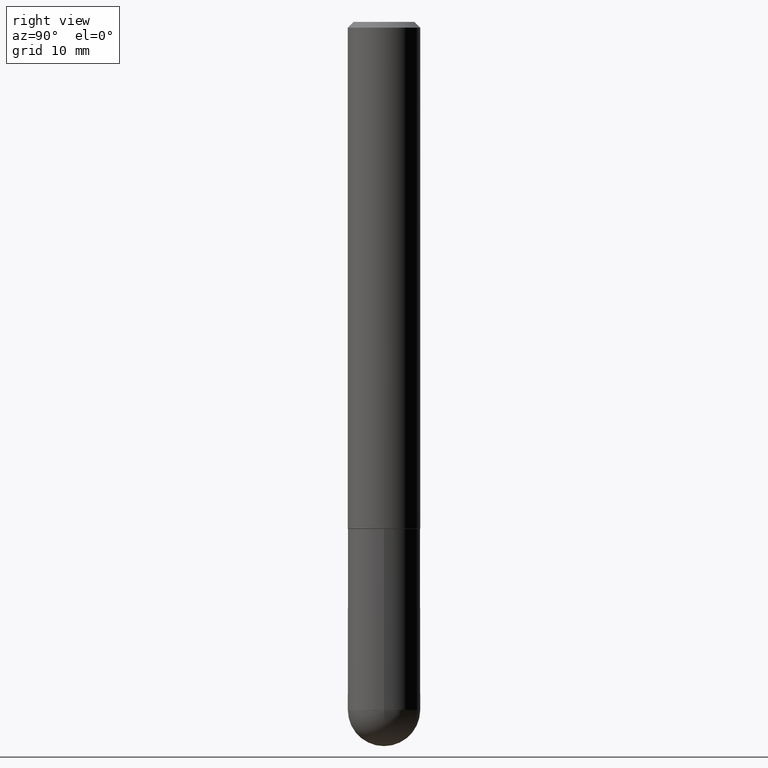
[diagram: clean part render]
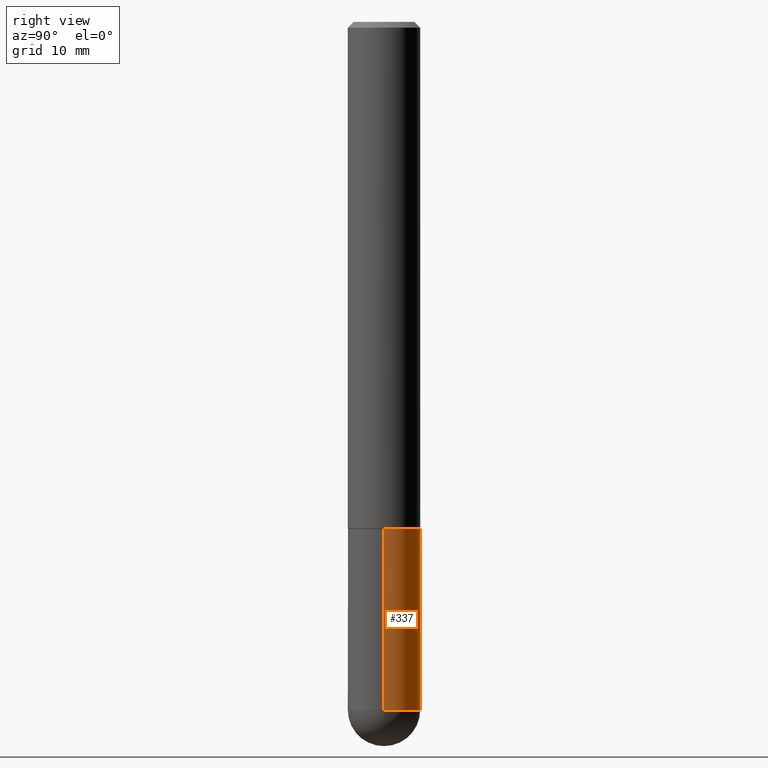
[diagram: same view with one face highlighted and labeled with its STEP entity id]
A machine part, right view. The second image highlights one B-rep face of the part: STEP entity #337.
In plain terms, the highlighted cylindrical surface (edge-blend (fillet) strip) has radius 3.175 mm, axis along (-0, 0, 1).
Its self-contained STEP definition (entity closure, byte-faithful):
#7 = EDGE_CURVE ( 'NONE', #91, #100, #302, .T. ) ;
#18 = EDGE_CURVE ( 'NONE', #252, #134, #112, .T. ) ;
#31 = DIRECTION ( 'NONE',  ( -2.445468806185136597E-29, 3.491481338843145583E-15, 1.000000000000000000 ) ) ;
#35 = CARTESIAN_POINT ( 'NONE',  ( -0.1250000000000000000, -6.313001841663864134E-15, -2.375000000000000000 ) ) ;
#61 = AXIS2_PLACEMENT_3D ( 'NONE', #148, #334, #271 ) ;
#66 = CARTESIAN_POINT ( 'NONE',  ( 0.1250000000000000000, -6.982962677686288010E-15, -1.750000000000000222 ) ) ;
#78 = DIRECTION ( 'NONE',  ( -2.445468806185136597E-29, 3.491481338843145583E-15, 1.000000000000000000 ) ) ;
#86 = VERTEX_POINT ( 'NONE', #270 ) ;
#87 = EDGE_CURVE ( 'NONE', #91, #252, #276, .T. ) ;
#89 = AXIS2_PLACEMENT_3D ( 'NONE', #223, #195, #312 ) ;
#91 = VERTEX_POINT ( 'NONE', #343 ) ;
#93 = CYLINDRICAL_SURFACE ( 'NONE', #89, 0.1250000000000000000 ) ;
#100 = VERTEX_POINT ( 'NONE', #66 ) ;
#105 = CARTESIAN_POINT ( 'NONE',  ( 5.807988414689700538E-29, -8.292268179752471696E-15, -2.375000000000000000 ) ) ;
#107 = DIRECTION ( 'NONE',  ( 1.000000000000000000, -6.982962677686270655E-15, 0.000000000000000000 ) ) ;
#110 = CIRCLE ( 'NONE', #381, 0.1250000000000000000 ) ;
#111 = CARTESIAN_POINT ( 'NONE',  ( 0.1250000000000000000, -8.728703347107833388E-16, 6.095220969744919741E-30 ) ) ;
#112 = CIRCLE ( 'NONE', #61, 0.1250000000000000000 ) ;
#121 = LINE ( 'NONE', #250, #247 ) ;
#124 = ORIENTED_EDGE ( 'NONE', *, *, #314, .T. ) ;
#134 = VERTEX_POINT ( 'NONE', #35 ) ;
#139 = CARTESIAN_POINT ( 'NONE',  ( 8.728703347108403340E-16, 0.1249999999999915623, -2.375000000000000888 ) ) ;
#148 = CARTESIAN_POINT ( 'NONE',  ( 5.807988414689700538E-29, -8.292268179752471696E-15, -2.375000000000000000 ) ) ;
#158 = ORIENTED_EDGE ( 'NONE', *, *, #331, .F. ) ;
#195 = DIRECTION ( 'NONE',  ( -2.445468806185136597E-29, 3.491481338843145583E-15, 1.000000000000000000 ) ) ;
#223 = CARTESIAN_POINT ( 'NONE',  ( 0.000000000000000000, 0.000000000000000000, 0.000000000000000000 ) ) ;
#242 = DIRECTION ( 'NONE',  ( -2.445468806185136877E-29, 3.491481338843145188E-15, 1.000000000000000000 ) ) ;
#247 = VECTOR ( 'NONE', #379, 39.37007874015748143 ) ;
#250 = CARTESIAN_POINT ( 'NONE',  ( -0.1250000000000000000, 8.881784197001252323E-16, -6.148668862818632227E-30 ) ) ;
#252 = VERTEX_POINT ( 'NONE', #139 ) ;
#259 = ORIENTED_EDGE ( 'NONE', *, *, #87, .T. ) ;
#270 = CARTESIAN_POINT ( 'NONE',  ( -0.1250000000000000000, -6.313001841663863345E-15, -1.750000000000000222 ) ) ;
#271 = DIRECTION ( 'NONE',  ( 1.000000000000000000, -6.982962677686270655E-15, 0.000000000000000000 ) ) ;
#276 = CIRCLE ( 'NONE', #403, 0.1250000000000000000 ) ;
#286 = DIRECTION ( 'NONE',  ( 1.000000000000000000, -6.982962677686262766E-15, 0.000000000000000000 ) ) ;
#302 = LINE ( 'NONE', #111, #370 ) ;
#307 = ORIENTED_EDGE ( 'NONE', *, *, #7, .F. ) ;
#312 = DIRECTION ( 'NONE',  ( 1.000000000000000000, -6.982962677686266711E-15, 4.876176775795935793E-29 ) ) ;
#313 = CARTESIAN_POINT ( 'NONE',  ( 4.279570410823989044E-29, -6.110092342975505460E-15, -1.750000000000000222 ) ) ;
#314 = EDGE_CURVE ( 'NONE', #134, #86, #121, .T. ) ;
#331 = EDGE_CURVE ( 'NONE', #100, #86, #110, .T. ) ;
#334 = DIRECTION ( 'NONE',  ( -2.445468806185136597E-29, 3.491481338843145583E-15, 1.000000000000000000 ) ) ;
#337 = ADVANCED_FACE ( 'NONE', ( #383 ), #93, .T. ) ;
#343 = CARTESIAN_POINT ( 'NONE',  ( 0.1250000000000000000, -8.074050596074771916E-15, -2.375000000000000000 ) ) ;
#358 = ORIENTED_EDGE ( 'NONE', *, *, #18, .T. ) ;
#370 = VECTOR ( 'NONE', #242, 39.37007874015748143 ) ;
#379 = DIRECTION ( 'NONE',  ( -2.445468806185136877E-29, 3.491481338843145188E-15, 1.000000000000000000 ) ) ;
#381 = AXIS2_PLACEMENT_3D ( 'NONE', #313, #31, #286 ) ;
#383 = FACE_OUTER_BOUND ( 'NONE', #405, .T. ) ;
#403 = AXIS2_PLACEMENT_3D ( 'NONE', #105, #78, #107 ) ;
#405 = EDGE_LOOP ( 'NONE', ( #358, #124, #158, #307, #259 ) ) ;